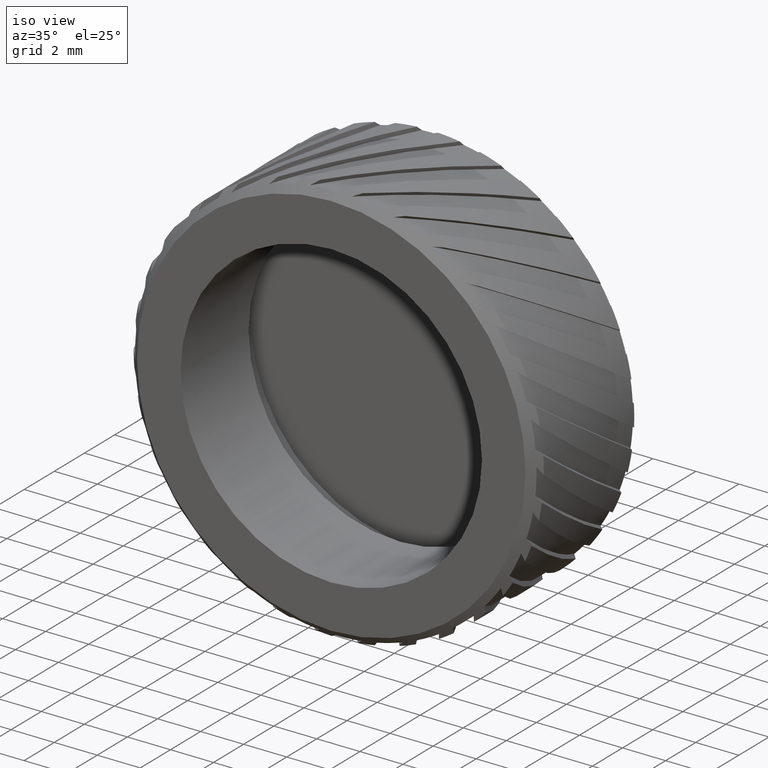
[diagram: clean part render]
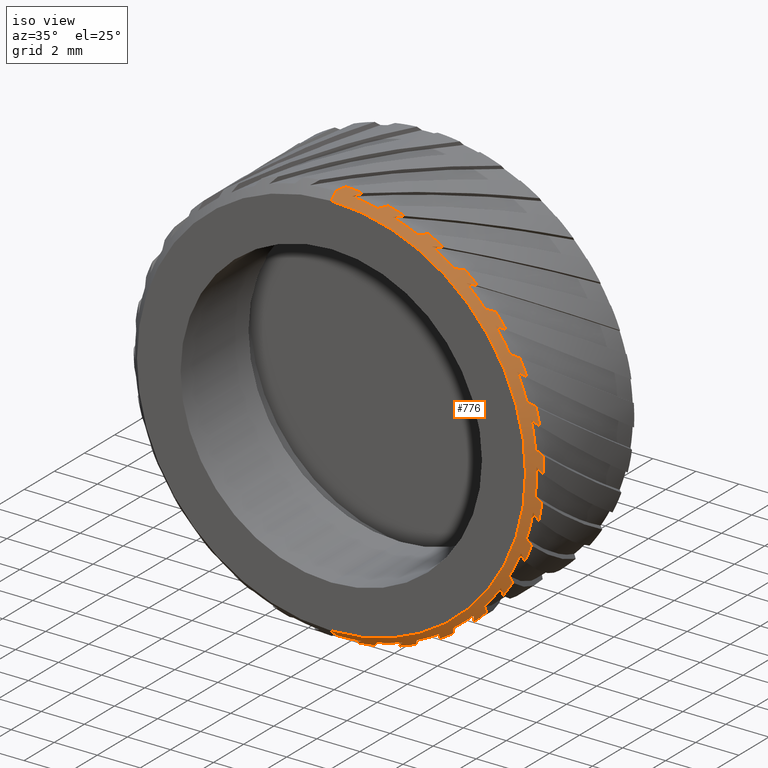
[diagram: same view with one face highlighted and labeled with its STEP entity id]
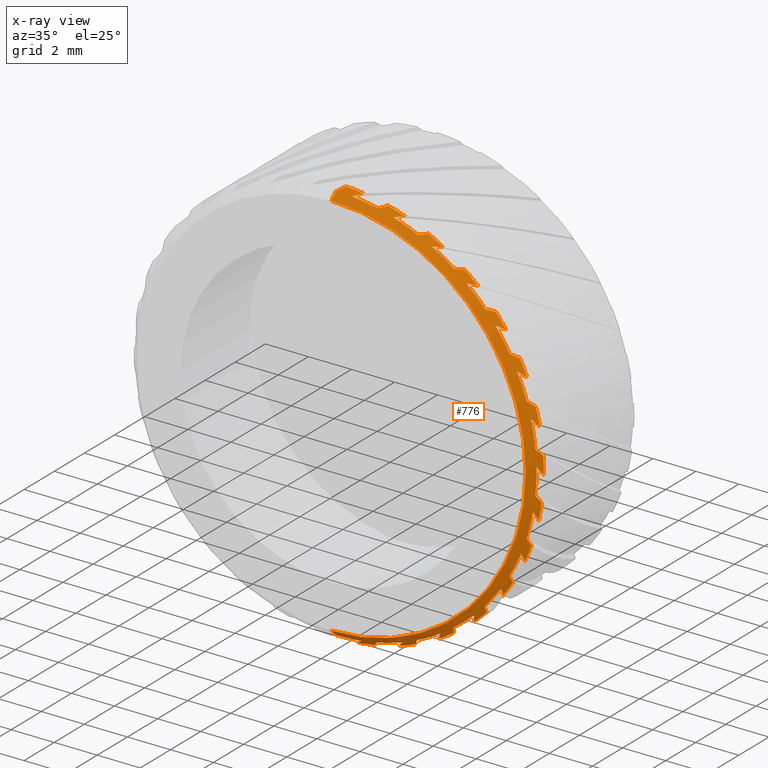
[diagram: x-ray of the same camera — body ghosted, the highlighted face saturated]
A machine part, iso view. The second image highlights one B-rep face of the part: STEP entity #776.
The next image is the same camera in x-ray: the body ghosted, the highlighted face saturated — about 0% of this face is hidden behind the body in this view.
In plain terms, the highlighted conical surface has half-angle 45 deg.
Its self-contained STEP definition (entity closure, byte-faithful):
#21 = CARTESIAN_POINT ( 'NONE',  ( 4.870338292270503200, -12.83088448223190900, 8.185684450236509600 ) ) ;
#32 = DIRECTION ( 'NONE',  ( 0.0000000000000000000, 1.000000000000000000, 0.0000000000000000000 ) ) ;
#38 = CARTESIAN_POINT ( 'NONE',  ( 3.814657378350161400, -13.03088448223190600, 8.509054829168677600 ) ) ;
#49 = CARTESIAN_POINT ( 'NONE',  ( 9.207953515562968100, -12.96534722351687200, -1.846555314416309200 ) ) ;
#56 = CARTESIAN_POINT ( 'NONE',  ( 4.164090544165423700, -12.83088448223190700, 8.566561442025165000 ) ) ;
#68 = EDGE_CURVE ( 'NONE', #3888, #1307, #2335, .T. ) ;
#84 = VERTEX_POINT ( 'NONE', #4165 ) ;
#88 = CARTESIAN_POINT ( 'NONE',  ( 0.0000000000000000000, -13.03088448223190600, -0.0000000000000000000 ) ) ;
#105 = VERTEX_POINT ( 'NONE', #2701 ) ;
#124 = ORIENTED_EDGE ( 'NONE', *, *, #1423, .F. ) ;
#130 = AXIS2_PLACEMENT_3D ( 'NONE', #561, #916, #3170 ) ;
#136 = EDGE_CURVE ( 'NONE', #4633, #138, #3247, .T. ) ;
#138 = VERTEX_POINT ( 'NONE', #3550 ) ;
#149 = CARTESIAN_POINT ( 'NONE',  ( 0.0000000000000000000, -13.03088448223190600, 0.0000000000000000000 ) ) ;
#156 = EDGE_CURVE ( 'NONE', #1307, #3313, #2257, .T. ) ;
#178 = ORIENTED_EDGE ( 'NONE', *, *, #4679, .F. ) ;
#182 = ORIENTED_EDGE ( 'NONE', *, *, #3194, .F. ) ;
#194 = ORIENTED_EDGE ( 'NONE', *, *, #662, .F. ) ;
#198 = DIRECTION ( 'NONE',  ( 0.0000000000000000000, 0.0000000000000000000, 1.000000000000000000 ) ) ;
#216 = CIRCLE ( 'NONE', #2309, 9.525000000000007500 ) ;
#219 = CARTESIAN_POINT ( 'NONE',  ( 9.500905103956760900, -12.83088448223190700, 0.6770725261067379600 ) ) ;
#224 = CARTESIAN_POINT ( 'NONE',  ( 8.424867540403829100, -13.03088448223190600, 3.997152977639219200 ) ) ;
#233 = B_SPLINE_CURVE_WITH_KNOTS ( 'NONE', 3,
 ( #3875, #3846, #503, #3833 ),
 .UNSPECIFIED., .F., .F.,
 ( 4, 4 ),
 ( 4.433820586314224500E-007, 0.0004511833739654762300 ),
 .UNSPECIFIED. ) ;
#242 = CARTESIAN_POINT ( 'NONE',  ( 9.152516238525768300, -12.83088448223190700, 2.637626111396816200 ) ) ;
#271 = VERTEX_POINT ( 'NONE', #1390 ) ;
#272 = EDGE_CURVE ( 'NONE', #2508, #2579, #2745, .T. ) ;
#278 = CARTESIAN_POINT ( 'NONE',  ( 4.855894612630616600, -13.03088448223190600, -7.960898976310720500 ) ) ;
#300 = B_SPLINE_CURVE_WITH_KNOTS ( 'NONE', 3,
 ( #4542, #3065, #868, #4498 ),
 .UNSPECIFIED., .F., .F.,
 ( 4, 4 ),
 ( 0.0004226730104152885700, 0.0008293654366192136400 ),
 .UNSPECIFIED. ) ;
#308 = EDGE_CURVE ( 'NONE', #105, #465, #546, .T. ) ;
#311 = CARTESIAN_POINT ( 'NONE',  ( 9.071818805184335600, -13.03088448223190600, 2.158177139602768700 ) ) ;
#317 = AXIS2_PLACEMENT_3D ( 'NONE', #3548, #4288, #3136 ) ;
#326 = CARTESIAN_POINT ( 'NONE',  ( 9.500905103956760900, -12.83088448223190700, 0.6770725261067379600 ) ) ;
#330 = CARTESIAN_POINT ( 'NONE',  ( 3.707592461268477600, -12.96496842722939200, -8.628600713999469800 ) ) ;
#343 = EDGE_CURVE ( 'NONE', #1672, #1508, #3118, .T. ) ;
#344 = CARTESIAN_POINT ( 'NONE',  ( 7.631753437051152400, -12.83088448223190900, -5.699295085890716100 ) ) ;
#372 = CIRCLE ( 'NONE', #2705, 9.325000000000008200 ) ;
#380 = ORIENTED_EDGE ( 'NONE', *, *, #2422, .F. ) ;
#389 = CARTESIAN_POINT ( 'NONE',  ( 0.0000000000000000000, -13.03088448223190600, -0.0000000000000000000 ) ) ;
#394 = DIRECTION ( 'NONE',  ( 0.0000000000000000000, 0.0000000000000000000, 1.000000000000000000 ) ) ;
#408 = CARTESIAN_POINT ( 'NONE',  ( 2.930637846493423300, -12.89865641947646500, 8.992436686122829300 ) ) ;
#413 = ORIENTED_EDGE ( 'NONE', *, *, #2620, .F. ) ;
#436 = CARTESIAN_POINT ( 'NONE',  ( 4.789065492326550100, -12.96534722351687200, -8.078429685537567900 ) ) ;
#463 = ORIENTED_EDGE ( 'NONE', *, *, #343, .F. ) ;
#465 = VERTEX_POINT ( 'NONE', #1919 ) ;
#470 = VERTEX_POINT ( 'NONE', #3786 ) ;
#491 = CARTESIAN_POINT ( 'NONE',  ( 9.152516238525768300, -12.83088448223190700, 2.637626111396816200 ) ) ;
#501 = ORIENTED_EDGE ( 'NONE', *, *, #4712, .F. ) ;
#503 = CARTESIAN_POINT ( 'NONE',  ( 0.8739464603738493800, -12.96534722351687200, 9.350528972115299100 ) ) ;
#504 = EDGE_CURVE ( 'NONE', #4040, #4674, #3430, .T. ) ;
#507 = CARTESIAN_POINT ( 'NONE',  ( 8.968881278861911000, -12.96496842722939200, 2.785347509049333600 ) ) ;
#512 = EDGE_CURVE ( 'NONE', #2574, #1230, #1366, .T. ) ;
#518 = AXIS2_PLACEMENT_3D ( 'NONE', #1994, #2008, #3491 ) ;
#526 = ORIENTED_EDGE ( 'NONE', *, *, #1048, .F. ) ;
#546 = B_SPLINE_CURVE_WITH_KNOTS ( 'NONE', 3,
 ( #4409, #2553, #2162, #3307 ),
 .UNSPECIFIED., .F., .F.,
 ( 4, 4 ),
 ( 0.0004226730104152889500, 0.0008293654366192129900 ),
 .UNSPECIFIED. ) ;
#553 = CARTESIAN_POINT ( 'NONE',  ( 1.119857609519556500, -12.83088448223190900, 9.458939894850866300 ) ) ;
#561 = CARTESIAN_POINT ( 'NONE',  ( 0.0000000000000000000, -12.83088448223190900, 0.0000000000000000000 ) ) ;
#564 = CARTESIAN_POINT ( 'NONE',  ( 9.342041456863764600, -12.83088448223190900, 1.857925299423781200 ) ) ;
#569 = CARTESIAN_POINT ( 'NONE',  ( 9.165328586957839400, -13.03088448223190600, -1.718248204740388600 ) ) ;
#571 = CARTESIAN_POINT ( 'NONE',  ( 8.893163563459369300, -12.96496842722939200, -3.018382675216257500 ) ) ;
#585 = DIRECTION ( 'NONE',  ( 0.0000000000000000000, 0.0000000000000000000, 1.000000000000000000 ) ) ;
#591 = CARTESIAN_POINT ( 'NONE',  ( 7.174770679677640900, -12.89828644355677900, 6.162639272177138100 ) ) ;
#594 = CARTESIAN_POINT ( 'NONE',  ( 9.162945818166235800, -12.96534722351687200, 2.058299882747275200 ) ) ;
#595 = EDGE_CURVE ( 'NONE', #3397, #4312, #837, .T. ) ;
#599 = CIRCLE ( 'NONE', #3883, 9.325000000000006400 ) ;
#641 = DIRECTION ( 'NONE',  ( 0.0000000000000000000, 1.000000000000000000, 0.0000000000000000000 ) ) ;
#642 = ORIENTED_EDGE ( 'NONE', *, *, #1179, .F. ) ;
#656 = DIRECTION ( 'NONE',  ( 0.8660254037844398200, 0.0000000000000000000, 0.4999999999999980000 ) ) ;
#659 = CONICAL_SURFACE ( 'NONE', #835, 9.525000000000007500, 0.7853981633974517200 ) ;
#662 = EDGE_CURVE ( 'NONE', #4408, #3216, #372, .T. ) ;
#668 = AXIS2_PLACEMENT_3D ( 'NONE', #764, #32, #4778 ) ;
#677 = VECTOR ( 'NONE', #1893, 1000.000000000000100 ) ;
#683 = CARTESIAN_POINT ( 'NONE',  ( 8.404118494825590700, -12.83088448223190700, 4.482902778884528600 ) ) ;
#686 = DIRECTION ( 'NONE',  ( -0.0000000000000000000, 1.000000000000000000, -0.0000000000000000000 ) ) ;
#696 = ORIENTED_EDGE ( 'NONE', *, *, #4482, .F. ) ;
#706 = DIRECTION ( 'NONE',  ( 0.0000000000000000000, 0.0000000000000000000, 1.000000000000000000 ) ) ;
#714 = DIRECTION ( 'NONE',  ( 0.0000000000000000000, 0.0000000000000000000, -1.000000000000000000 ) ) ;
#730 = CARTESIAN_POINT ( 'NONE',  ( 0.0000000000000000000, -12.83088448223190900, 0.0000000000000000000 ) ) ;
#736 = CARTESIAN_POINT ( 'NONE',  ( 0.0000000000000000000, -12.83088448223190900, 0.0000000000000000000 ) ) ;
#756 = CARTESIAN_POINT ( 'NONE',  ( 4.047907953994396700, -12.89828644355677900, 8.548093255278093500 ) ) ;
#759 = ORIENTED_EDGE ( 'NONE', *, *, #1554, .F. ) ;
#764 = CARTESIAN_POINT ( 'NONE',  ( -0.0000000000000000000, -13.03088448223190600, 0.0000000000000000000 ) ) ;
#771 = CIRCLE ( 'NONE', #3416, 9.325000000000008200 ) ;
#772 = CARTESIAN_POINT ( 'NONE',  ( 7.660822398487292500, -12.96534722351687200, -5.432124322288925300 ) ) ;
#775 = ORIENTED_EDGE ( 'NONE', *, *, #3358, .F. ) ;
#776 = ADVANCED_FACE ( 'NONE', ( #3605 ), #659, .T. ) ;
#834 = DIRECTION ( 'NONE',  ( 0.0000000000000000000, 0.0000000000000000000, 1.000000000000000000 ) ) ;
#835 = AXIS2_PLACEMENT_3D ( 'NONE', #730, #3294, #4386 ) ;
#837 = CIRCLE ( 'NONE', #3955, 9.525000000000007500 ) ;
#859 = CIRCLE ( 'NONE', #1552, 9.325000000000006400 ) ;
#863 = ORIENTED_EDGE ( 'NONE', *, *, #2486, .F. ) ;
#868 = CARTESIAN_POINT ( 'NONE',  ( 5.736699975163662500, -12.89828644355677900, 7.519689521509459200 ) ) ;
#880 = CARTESIAN_POINT ( 'NONE',  ( 7.533581546059083100, -12.96534722351687200, 5.607256331116454700 ) ) ;
#910 = ORIENTED_EDGE ( 'NONE', *, *, #3908, .F. ) ;
#912 = CARTESIAN_POINT ( 'NONE',  ( 0.0000000000000000000, -12.83088448223190900, 0.0000000000000000000 ) ) ;
#916 = DIRECTION ( 'NONE',  ( -0.0000000000000000000, 1.000000000000000000, -0.0000000000000000000 ) ) ;
#940 = CARTESIAN_POINT ( 'NONE',  ( 1.166476076187854800E-015, -12.83088448223190900, -9.525000000000007500 ) ) ;
#942 = EDGE_CURVE ( 'NONE', #2651, #2539, #2400, .T. ) ;
#947 = CARTESIAN_POINT ( 'NONE',  ( 0.0000000000000000000, -13.03088448223190600, -0.0000000000000000000 ) ) ;
#996 = CARTESIAN_POINT ( 'NONE',  ( 8.063701062845819200, -13.03088448223190600, -4.683198711250607700 ) ) ;
#1001 = B_SPLINE_CURVE_WITH_KNOTS ( 'NONE', 3,
 ( #1859, #1460, #49, #3282 ),
 .UNSPECIFIED., .F., .F.,
 ( 4, 4 ),
 ( 4.433820586325697000E-007, 0.0004511833739654763900 ),
 .UNSPECIFIED. ) ;
#1004 = EDGE_CURVE ( 'NONE', #1771, #2355, #233, .T. ) ;
#1010 = DIRECTION ( 'NONE',  ( -0.0000000000000000000, 1.000000000000000000, -0.0000000000000000000 ) ) ;
#1014 = CARTESIAN_POINT ( 'NONE',  ( 9.434058825943974800, -12.83088448223190700, -1.313072377528650100 ) ) ;
#1034 = AXIS2_PLACEMENT_3D ( 'NONE', #88, #1929, #1944 ) ;
#1035 = B_SPLINE_CURVE_WITH_KNOTS ( 'NONE', 3,
 ( #3431, #4180, #880, #3392 ),
 .UNSPECIFIED., .F., .F.,
 ( 4, 4 ),
 ( 4.433820586316888400E-007, 0.0004511833739654772600 ),
 .UNSPECIFIED. ) ;
#1039 = DIRECTION ( 'NONE',  ( 0.0000000000000000000, 1.000000000000000000, 0.0000000000000000000 ) ) ;
#1044 = ORIENTED_EDGE ( 'NONE', *, *, #2600, .F. ) ;
#1048 = EDGE_CURVE ( 'NONE', #1068, #4145, #4693, .T. ) ;
#1050 = CARTESIAN_POINT ( 'NONE',  ( 3.814657378350161400, -13.03088448223190600, 8.509054829168677600 ) ) ;
#1052 = VERTEX_POINT ( 'NONE', #242 ) ;
#1058 = EDGE_CURVE ( 'NONE', #4268, #4088, #3667, .T. ) ;
#1059 = B_SPLINE_CURVE_WITH_KNOTS ( 'NONE', 3,
 ( #3733, #4074, #436, #2214 ),
 .UNSPECIFIED., .F., .F.,
 ( 4, 4 ),
 ( 4.433820586312838500E-007, 0.0004511833739654766600 ),
 .UNSPECIFIED. ) ;
#1061 = CARTESIAN_POINT ( 'NONE',  ( 9.276386333429815800, -13.03088448223190600, 0.9509372181993307500 ) ) ;
#1068 = VERTEX_POINT ( 'NONE', #3887 ) ;
#1072 = CIRCLE ( 'NONE', #4563, 9.525000000000007500 ) ;
#1077 = ORIENTED_EDGE ( 'NONE', *, *, #68, .F. ) ;
#1098 = VERTEX_POINT ( 'NONE', #1355 ) ;
#1126 = CARTESIAN_POINT ( 'NONE',  ( 0.0000000000000000000, -12.83088448223190900, 0.0000000000000000000 ) ) ;
#1131 = DIRECTION ( 'NONE',  ( 0.0000000000000000000, 0.0000000000000000000, 1.000000000000000000 ) ) ;
#1138 = B_SPLINE_CURVE_WITH_KNOTS ( 'NONE', 3,
 ( #2134, #330, #4697, #4716 ),
 .UNSPECIFIED., .F., .F.,
 ( 4, 4 ),
 ( 0.0004226730104152883500, 0.0008293654366192131000 ),
 .UNSPECIFIED. ) ;
#1141 = DIRECTION ( 'NONE',  ( -0.0000000000000000000, 1.000000000000000000, -0.0000000000000000000 ) ) ;
#1179 = EDGE_CURVE ( 'NONE', #271, #2950, #1738, .T. ) ;
#1181 = CARTESIAN_POINT ( 'NONE',  ( 7.674069791650079100, -13.03088448223190600, -5.297572824689041200 ) ) ;
#1204 = CIRCLE ( 'NONE', #1034, 9.325000000000008200 ) ;
#1205 = B_SPLINE_CURVE_WITH_KNOTS ( 'NONE', 3,
 ( #3412, #3795, #2296, #4170 ),
 .UNSPECIFIED., .F., .F.,
 ( 4, 4 ),
 ( 4.433820586328774900E-007, 0.0004511833739654774700 ),
 .UNSPECIFIED. ) ;
#1207 = EDGE_CURVE ( 'NONE', #3761, #4599, #2035, .T. ) ;
#1228 = CIRCLE ( 'NONE', #4037, 9.525000000000007500 ) ;
#1230 = VERTEX_POINT ( 'NONE', #1457 ) ;
#1244 = VERTEX_POINT ( 'NONE', #2993 ) ;
#1248 = CARTESIAN_POINT ( 'NONE',  ( 7.060577856809785200, -12.96496842722939200, 6.192514228357842000 ) ) ;
#1258 = ORIENTED_EDGE ( 'NONE', *, *, #3562, .F. ) ;
#1279 = CARTESIAN_POINT ( 'NONE',  ( 0.0000000000000000000, -12.83088448223190900, 0.0000000000000000000 ) ) ;
#1283 = ORIENTED_EDGE ( 'NONE', *, *, #512, .F. ) ;
#1289 = CARTESIAN_POINT ( 'NONE',  ( 6.334824403444840400, -12.89865641947646700, 7.023001887992561100 ) ) ;
#1292 = DIRECTION ( 'NONE',  ( -0.2079116908177664500, 0.0000000000000000000, -0.9781476007338041300 ) ) ;
#1294 = CARTESIAN_POINT ( 'NONE',  ( 9.071818805184335600, -13.03088448223190600, 2.158177139602768700 ) ) ;
#1304 = EDGE_CURVE ( 'NONE', #1230, #3163, #2897, .T. ) ;
#1307 = VERTEX_POINT ( 'NONE', #4149 ) ;
#1310 = CARTESIAN_POINT ( 'NONE',  ( 8.607800277777613500, -13.03088448223190600, -3.586279322346735700 ) ) ;
#1333 = CIRCLE ( 'NONE', #2038, 9.525000000000007500 ) ;
#1336 = CARTESIAN_POINT ( 'NONE',  ( 2.666873173829314800, -13.03088448223190600, 8.935514113620417500 ) ) ;
#1338 = AXIS2_PLACEMENT_3D ( 'NONE', #3981, #2830, #4291 ) ;
#1349 = CARTESIAN_POINT ( 'NONE',  ( 7.631753437051152400, -12.83088448223190900, -5.699295085890716100 ) ) ;
#1355 = CARTESIAN_POINT ( 'NONE',  ( 6.280031236066718300, -12.83088448223190900, -7.161482575139485700 ) ) ;
#1358 = EDGE_CURVE ( 'NONE', #3538, #1098, #2721, .T. ) ;
#1366 = B_SPLINE_CURVE_WITH_KNOTS ( 'NONE', 3,
 ( #3181, #1289, #3561, #2379 ),
 .UNSPECIFIED., .F., .F.,
 ( 4, 4 ),
 ( 4.433820586323410600E-007, 0.0004511833739654791000 ),
 .UNSPECIFIED. ) ;
#1369 = CIRCLE ( 'NONE', #4469, 9.325000000000006400 ) ;
#1385 = CARTESIAN_POINT ( 'NONE',  ( 7.409709137107907600, -13.03088448223190600, 5.661434050084810800 ) ) ;
#1390 = CARTESIAN_POINT ( 'NONE',  ( 8.084366936622640100, -12.83088448223190700, -5.036728723491354000 ) ) ;
#1391 = CARTESIAN_POINT ( 'NONE',  ( 0.0000000000000000000, -13.03088448223190600, -0.0000000000000000000 ) ) ;
#1400 = ORIENTED_EDGE ( 'NONE', *, *, #4134, .F. ) ;
#1413 = CARTESIAN_POINT ( 'NONE',  ( 5.336814559791353200, -12.83088448223190700, -7.889488915918393600 ) ) ;
#1421 = CARTESIAN_POINT ( 'NONE',  ( 5.461728955079668600, -13.03088448223190600, -7.558117610969312700 ) ) ;
#1423 = EDGE_CURVE ( 'NONE', #84, #1771, #4173, .T. ) ;
#1430 = DIRECTION ( 'NONE',  ( 0.4067366430757947100, 0.0000000000000000000, -0.9135454576426032000 ) ) ;
#1432 = B_SPLINE_CURVE_WITH_KNOTS ( 'NONE', 3,
 ( #2714, #4188, #3082, #4602 ),
 .UNSPECIFIED., .F., .F.,
 ( 4, 4 ),
 ( 4.433820586321245300E-007, 0.0004511833739654774200 ),
 .UNSPECIFIED. ) ;
#1434 = CARTESIAN_POINT ( 'NONE',  ( 9.351996014306605400, -12.96496842722939200, 0.8597457117545545000 ) ) ;
#1436 = CARTESIAN_POINT ( 'NONE',  ( 0.02391852349061755100, -13.03088448223190600, 9.324969324573359600 ) ) ;
#1442 = VERTEX_POINT ( 'NONE', #4540 ) ;
#1445 = B_SPLINE_CURVE_WITH_KNOTS ( 'NONE', 3,
 ( #4421, #4483, #4502, #3735 ),
 .UNSPECIFIED., .F., .F.,
 ( 4, 4 ),
 ( 0.0004226730104152886200, 0.0008293654366192134300 ),
 .UNSPECIFIED. ) ;
#1448 = VERTEX_POINT ( 'NONE', #1654 ) ;
#1457 = CARTESIAN_POINT ( 'NONE',  ( 6.070710888791085200, -13.03088448223190600, 7.078283287967038500 ) ) ;
#1460 = CARTESIAN_POINT ( 'NONE',  ( 9.249510247550048800, -12.89865641947646700, -1.974617917900571200 ) ) ;
#1491 = CARTESIAN_POINT ( 'NONE',  ( 5.336814559791353200, -12.83088448223190700, -7.889488915918393600 ) ) ;
#1497 = EDGE_CURVE ( 'NONE', #3163, #3508, #2773, .T. ) ;
#1508 = VERTEX_POINT ( 'NONE', #219 ) ;
#1510 = CARTESIAN_POINT ( 'NONE',  ( 3.062010220797057000, -12.83088448223190900, 9.019407874563304600 ) ) ;
#1513 = EDGE_CURVE ( 'NONE', #3216, #271, #2473, .T. ) ;
#1538 = EDGE_CURVE ( 'NONE', #3335, #1673, #1369, .T. ) ;
#1552 = AXIS2_PLACEMENT_3D ( 'NONE', #4131, #3003, #3363 ) ;
#1554 = EDGE_CURVE ( 'NONE', #2393, #4408, #2838, .T. ) ;
#1560 = VERTEX_POINT ( 'NONE', #1684 ) ;
#1562 = CARTESIAN_POINT ( 'NONE',  ( 9.290065837399984300, -12.83088448223190900, -2.102451363711865400 ) ) ;
#1563 = CARTESIAN_POINT ( 'NONE',  ( 1.962165985461234300, -13.03088448223190600, 9.116223431086968500 ) ) ;
#1581 = CARTESIAN_POINT ( 'NONE',  ( 2.182202931218148600, -12.89828644355677900, 9.202904295488727000 ) ) ;
#1593 = DIRECTION ( 'NONE',  ( -0.0000000000000000000, 1.000000000000000000, -0.0000000000000000000 ) ) ;
#1607 = CARTESIAN_POINT ( 'NONE',  ( 6.945807317418622300, -13.03088448223190600, 6.221847451464401300 ) ) ;
#1608 = VERTEX_POINT ( 'NONE', #311 ) ;
#1613 = CARTESIAN_POINT ( 'NONE',  ( 4.870338292270503200, -12.83088448223190900, 8.185684450236509600 ) ) ;
#1617 = ORIENTED_EDGE ( 'NONE', *, *, #136, .F. ) ;
#1619 = CARTESIAN_POINT ( 'NONE',  ( 0.02391852349061755100, -13.03088448223190600, 9.324969324573359600 ) ) ;
#1620 = EDGE_CURVE ( 'NONE', #4674, #1943, #3248, .T. ) ;
#1638 = CARTESIAN_POINT ( 'NONE',  ( 8.954898907600604500, -12.83088448223190700, -3.245829717445702500 ) ) ;
#1640 = CARTESIAN_POINT ( 'NONE',  ( 6.404945631355031000, -13.03088448223190600, -6.777336974017614100 ) ) ;
#1654 = CARTESIAN_POINT ( 'NONE',  ( 5.854183448919412700, -12.83088448223190700, 7.513598415299967700 ) ) ;
#1671 = CARTESIAN_POINT ( 'NONE',  ( 7.288420445466736700, -12.83088448223190700, 6.132255083580807800 ) ) ;
#1672 = VERTEX_POINT ( 'NONE', #2554 ) ;
#1673 = VERTEX_POINT ( 'NONE', #2264 ) ;
#1684 = CARTESIAN_POINT ( 'NONE',  ( 6.404945631355031000, -13.03088448223190600, -6.777336974017614100 ) ) ;
#1686 = DIRECTION ( 'NONE',  ( 0.0000000000000000000, 1.000000000000000000, 0.0000000000000000000 ) ) ;
#1704 = EDGE_CURVE ( 'NONE', #1608, #1672, #1204, .T. ) ;
#1707 = ORIENTED_EDGE ( 'NONE', *, *, #1304, .F. ) ;
#1715 = CARTESIAN_POINT ( 'NONE',  ( 6.465809209895690300, -12.83088448223190900, 6.994207336162423500 ) ) ;
#1731 = CARTESIAN_POINT ( 'NONE',  ( 0.0000000000000000000, -12.83088448223190900, 0.0000000000000000000 ) ) ;
#1737 = ORIENTED_EDGE ( 'NONE', *, *, #3273, .F. ) ;
#1738 = CIRCLE ( 'NONE', #3415, 9.525000000000007500 ) ;
#1740 = DIRECTION ( 'NONE',  ( 0.0000000000000000000, 0.0000000000000000000, 1.000000000000000000 ) ) ;
#1741 = VERTEX_POINT ( 'NONE', #4543 ) ;
#1750 = CARTESIAN_POINT ( 'NONE',  ( 0.0000000000000000000, -13.33088448223191600, 0.0000000000000000000 ) ) ;
#1758 = ORIENTED_EDGE ( 'NONE', *, *, #3053, .F. ) ;
#1771 = VERTEX_POINT ( 'NONE', #553 ) ;
#1794 = CARTESIAN_POINT ( 'NONE',  ( 5.420559634327515800, -12.96496842722939200, -7.669193268603035700 ) ) ;
#1809 = CARTESIAN_POINT ( 'NONE',  ( 8.087619586336469300, -13.03088448223190600, 4.641770613322771400 ) ) ;
#1813 = DIRECTION ( 'NONE',  ( 0.0000000000000000000, 0.0000000000000000000, 1.000000000000000000 ) ) ;
#1823 = CIRCLE ( 'NONE', #4032, 9.024999999999996800 ) ;
#1831 = CARTESIAN_POINT ( 'NONE',  ( 2.914685844105174600, -12.89865641947646700, -8.997619805893126700 ) ) ;
#1859 = CARTESIAN_POINT ( 'NONE',  ( 9.290065837399984300, -12.83088448223190900, -2.102451363711865400 ) ) ;
#1862 = AXIS2_PLACEMENT_3D ( 'NONE', #947, #1686, #3505 ) ;
#1866 = DIRECTION ( 'NONE',  ( -0.0000000000000000000, 1.000000000000000000, -0.0000000000000000000 ) ) ;
#1876 = EDGE_CURVE ( 'NONE', #2539, #3420, #4314, .T. ) ;
#1879 = CARTESIAN_POINT ( 'NONE',  ( 6.322359688858828300, -12.89865641947646700, -7.034225167416825500 ) ) ;
#1882 = EDGE_CURVE ( 'NONE', #4268, #3024, #1823, .T. ) ;
#1893 = DIRECTION ( 'NONE',  ( 0.0000000000000000000, 0.7071067811865451300, 0.7071067811865500200 ) ) ;
#1919 = CARTESIAN_POINT ( 'NONE',  ( 1.666478462133835300, -12.83088448223190700, -9.378084801026497900 ) ) ;
#1922 = EDGE_CURVE ( 'NONE', #3919, #1244, #859, .T. ) ;
#1927 = CARTESIAN_POINT ( 'NONE',  ( 8.954898907600604500, -12.83088448223190700, -3.245829717445702500 ) ) ;
#1929 = DIRECTION ( 'NONE',  ( 0.0000000000000000000, 1.000000000000000000, 0.0000000000000000000 ) ) ;
#1937 = AXIS2_PLACEMENT_3D ( 'NONE', #3210, #2468, #3952 ) ;
#1943 = VERTEX_POINT ( 'NONE', #4522 ) ;
#1944 = DIRECTION ( 'NONE',  ( 0.8660254037844363800, 0.0000000000000000000, -0.5000000000000040000 ) ) ;
#1945 = CARTESIAN_POINT ( 'NONE',  ( 4.653841535132784200, -12.83088448223190900, -8.310678911248652800 ) ) ;
#1953 = CARTESIAN_POINT ( 'NONE',  ( 8.875964070626878300, -13.03088448223190600, 2.858826125692306900 ) ) ;
#1968 = VECTOR ( 'NONE', #3903, 1000.000000000000100 ) ;
#1984 = VERTEX_POINT ( 'NONE', #1562 ) ;
#1994 = CARTESIAN_POINT ( 'NONE',  ( 0.0000000000000000000, -12.83088448223190900, 0.0000000000000000000 ) ) ;
#1996 = CARTESIAN_POINT ( 'NONE',  ( 1.135859906209170400E-015, -13.33088448223191600, -9.024999999999996800 ) ) ;
#1999 = CARTESIAN_POINT ( 'NONE',  ( 0.2211251689762230300, -12.89828644355677800, 9.455504257552167500 ) ) ;
#2008 = DIRECTION ( 'NONE',  ( -0.0000000000000000000, 1.000000000000000000, -0.0000000000000000000 ) ) ;
#2010 = DIRECTION ( 'NONE',  ( -0.0000000000000000000, 1.000000000000000000, -0.0000000000000000000 ) ) ;
#2018 = ORIENTED_EDGE ( 'NONE', *, *, #1620, .F. ) ;
#2023 = CIRCLE ( 'NONE', #4435, 9.325000000000008200 ) ;
#2025 = CARTESIAN_POINT ( 'NONE',  ( 6.860509337417676400, -12.83088448223190700, -6.607498515414516000 ) ) ;
#2035 = B_SPLINE_CURVE_WITH_KNOTS ( 'NONE', 3,
 ( #1050, #3983, #756, #3680 ),
 .UNSPECIFIED., .F., .F.,
 ( 4, 4 ),
 ( 0.0004226730104152884600, 0.0008293654366192127700 ),
 .UNSPECIFIED. ) ;
#2036 = EDGE_CURVE ( 'NONE', #4106, #2053, #1432, .T. ) ;
#2038 = AXIS2_PLACEMENT_3D ( 'NONE', #1126, #1141, #3018 ) ;
#2053 = VERTEX_POINT ( 'NONE', #4205 ) ;
#2057 = EDGE_CURVE ( 'NONE', #4656, #84, #4756, .T. ) ;
#2058 = CARTESIAN_POINT ( 'NONE',  ( 0.0000000000000000000, -12.83088448223190900, 0.0000000000000000000 ) ) ;
#2065 = CARTESIAN_POINT ( 'NONE',  ( 8.649931391620446800, -12.83088448223190900, -3.988021053136419500 ) ) ;
#2071 = ORIENTED_EDGE ( 'NONE', *, *, #2325, .F. ) ;
#2078 = ORIENTED_EDGE ( 'NONE', *, *, #2369, .F. ) ;
#2099 = CARTESIAN_POINT ( 'NONE',  ( 9.271386000421596700, -13.03088448223190600, -0.9985122088319959800 ) ) ;
#2122 = CARTESIAN_POINT ( 'NONE',  ( 5.500429939048202300, -13.03088448223190600, 7.529999700240519900 ) ) ;
#2133 = CIRCLE ( 'NONE', #2182, 9.525000000000007500 ) ;
#2134 = CARTESIAN_POINT ( 'NONE',  ( 3.770956061373358400, -13.03088448223190600, -8.528511909072511400 ) ) ;
#2149 = CARTESIAN_POINT ( 'NONE',  ( 7.778693238653521500, -12.83088448223190900, 5.497049799567596700 ) ) ;
#2152 = DIRECTION ( 'NONE',  ( 0.0000000000000000000, 0.0000000000000000000, 1.000000000000000000 ) ) ;
#2162 = CARTESIAN_POINT ( 'NONE',  ( 1.749616824226184300, -12.89828644355677800, -9.294853311017156700 ) ) ;
#2182 = AXIS2_PLACEMENT_3D ( 'NONE', #3497, #3132, #198 ) ;
#2188 = ORIENTED_EDGE ( 'NONE', *, *, #2057, .F. ) ;
#2208 = CARTESIAN_POINT ( 'NONE',  ( 3.062010220797057000, -12.83088448223190900, 9.019407874563304600 ) ) ;
#2214 = CARTESIAN_POINT ( 'NONE',  ( 4.855894612630616600, -13.03088448223190600, -7.960898976310720500 ) ) ;
#2257 = CIRCLE ( 'NONE', #130, 9.525000000000007500 ) ;
#2259 = CARTESIAN_POINT ( 'NONE',  ( 0.0000000000000000000, -12.83088448223190900, 9.525000000000007500 ) ) ;
#2261 = VERTEX_POINT ( 'NONE', #3357 ) ;
#2264 = CARTESIAN_POINT ( 'NONE',  ( 6.913798085165607800, -13.03088448223190600, -6.257397305394670500 ) ) ;
#2271 = CARTESIAN_POINT ( 'NONE',  ( 1.962165985461234300, -13.03088448223190600, 9.116223431086968500 ) ) ;
#2275 = CARTESIAN_POINT ( 'NONE',  ( 6.280031236066718300, -12.83088448223190900, -7.161482575139485700 ) ) ;
#2296 = CARTESIAN_POINT ( 'NONE',  ( 9.390658076525140200, -12.96534722351687400, 0.1082375339734589800 ) ) ;
#2298 = EDGE_CURVE ( 'NONE', #4312, #4633, #1059, .T. ) ;
#2309 = AXIS2_PLACEMENT_3D ( 'NONE', #1279, #3872, #2750 ) ;
#2313 = CARTESIAN_POINT ( 'NONE',  ( 4.601592584198555400, -12.96534722351687200, 8.186667219511027900 ) ) ;
#2314 = ORIENTED_EDGE ( 'NONE', *, *, #942, .F. ) ;
#2322 = VERTEX_POINT ( 'NONE', #1927 ) ;
#2325 = EDGE_CURVE ( 'NONE', #4475, #4040, #1035, .T. ) ;
#2335 = B_SPLINE_CURVE_WITH_KNOTS ( 'NONE', 3,
 ( #1563, #4148, #1581, #2671 ),
 .UNSPECIFIED., .F., .F.,
 ( 4, 4 ),
 ( 0.0004226730104152883500, 0.0008293654366192122300 ),
 .UNSPECIFIED. ) ;
#2348 = CARTESIAN_POINT ( 'NONE',  ( 0.1225138370717710100, -12.96496842722939200, 9.390632699675403900 ) ) ;
#2355 = VERTEX_POINT ( 'NONE', #4136 ) ;
#2357 = CARTESIAN_POINT ( 'NONE',  ( 4.736229094150678200, -12.89865641947646700, 8.186616499442733300 ) ) ;
#2369 = EDGE_CURVE ( 'NONE', #3420, #1448, #300, .T. ) ;
#2370 = CARTESIAN_POINT ( 'NONE',  ( -0.0000000000000000000, -13.03088448223190600, 0.0000000000000000000 ) ) ;
#2379 = CARTESIAN_POINT ( 'NONE',  ( 6.070710888791085200, -13.03088448223190600, 7.078283287967038500 ) ) ;
#2387 = B_SPLINE_CURVE_WITH_KNOTS ( 'NONE', 3,
 ( #1953, #507, #4536, #491 ),
 .UNSPECIFIED., .F., .F.,
 ( 4, 4 ),
 ( 0.0004226730104152886200, 0.0008293654366192125600 ),
 .UNSPECIFIED. ) ;
#2393 = VERTEX_POINT ( 'NONE', #4512 ) ;
#2397 = DIRECTION ( 'NONE',  ( -0.0000000000000000000, 1.000000000000000000, -0.0000000000000000000 ) ) ;
#2400 = B_SPLINE_CURVE_WITH_KNOTS ( 'NONE', 3,
 ( #1613, #2357, #2313, #3445 ),
 .UNSPECIFIED., .F., .F.,
 ( 4, 4 ),
 ( 4.433820586319022400E-007, 0.0004511833739654768200 ),
 .UNSPECIFIED. ) ;
#2410 = CARTESIAN_POINT ( 'NONE',  ( 8.643662270967636700, -12.89865641947646700, 3.839226261459192100 ) ) ;
#2413 = AXIS2_PLACEMENT_3D ( 'NONE', #2370, #2747, #1292 ) ;
#2422 = EDGE_CURVE ( 'NONE', #2538, #1442, #2619, .T. ) ;
#2426 = CIRCLE ( 'NONE', #668, 9.325000000000008200 ) ;
#2432 = CARTESIAN_POINT ( 'NONE',  ( 0.0000000000000000000, -13.03088448223190600, -0.0000000000000000000 ) ) ;
#2437 = CARTESIAN_POINT ( 'NONE',  ( 8.636840106574075200, -12.89865641947646700, -3.854549093564755900 ) ) ;
#2442 = CARTESIAN_POINT ( 'NONE',  ( 3.579875377024524900, -12.83088448223190700, -8.826670792828611700 ) ) ;
#2465 = EDGE_LOOP ( 'NONE', ( #4265, #3436, #3974, #3864, #1044, #4782, #2868, #1737, #380, #1258, #1617, #4564, #3040, #3446, #1400, #775, #4331, #4420, #2472, #696, #642, #4337, #194, #759, #2595, #3870, #2741, #1758, #182, #3239, #3485, #3332, #4335, #463, #2761, #2812, #4442, #4441, #501, #526, #863, #2018, #4313, #2071, #178, #4520, #1707, #1283, #413, #2078, #4329, #2314, #910, #3880, #3353, #4183, #3825, #1077, #2510, #3796, #124, #2188, #2754, #3328 ) ) ;
#2468 = DIRECTION ( 'NONE',  ( 0.0000000000000000000, 1.000000000000000000, 0.0000000000000000000 ) ) ;
#2472 = ORIENTED_EDGE ( 'NONE', *, *, #1538, .F. ) ;
#2473 = B_SPLINE_CURVE_WITH_KNOTS ( 'NONE', 3,
 ( #2786, #3929, #4695, #3586 ),
 .UNSPECIFIED., .F., .F.,
 ( 4, 4 ),
 ( 0.0004226730104152881900, 0.0008293654366192125600 ),
 .UNSPECIFIED. ) ;
#2475 = CARTESIAN_POINT ( 'NONE',  ( 9.380592141780669000, -12.89828644355677900, -1.208283151626581700 ) ) ;
#2486 = EDGE_CURVE ( 'NONE', #1943, #1068, #216, .T. ) ;
#2494 = EDGE_CURVE ( 'NONE', #2261, #1608, #2952, .T. ) ;
#2495 = DIRECTION ( 'NONE',  ( 0.7431448254773954700, 0.0000000000000000000, 0.6691306063588567900 ) ) ;
#2508 = VERTEX_POINT ( 'NONE', #2776 ) ;
#2510 = ORIENTED_EDGE ( 'NONE', *, *, #3596, .F. ) ;
#2511 = CARTESIAN_POINT ( 'NONE',  ( 0.0000000000000000000, -13.03088448223190600, 0.0000000000000000000 ) ) ;
#2538 = VERTEX_POINT ( 'NONE', #2442 ) ;
#2539 = VERTEX_POINT ( 'NONE', #3949 ) ;
#2541 = CARTESIAN_POINT ( 'NONE',  ( 0.0000000000000000000, -12.83088448223190900, 0.0000000000000000000 ) ) ;
#2549 = EDGE_CURVE ( 'NONE', #2053, #4088, #4024, .T. ) ;
#2553 = CARTESIAN_POINT ( 'NONE',  ( 1.832585706649547900, -12.96496842722939200, -9.210896903574090200 ) ) ;
#2554 = CARTESIAN_POINT ( 'NONE',  ( 9.276386333429815800, -13.03088448223190600, 0.9509372181993307500 ) ) ;
#2572 = DIRECTION ( 'NONE',  ( -0.0000000000000000000, 1.000000000000000000, -0.0000000000000000000 ) ) ;
#2574 = VERTEX_POINT ( 'NONE', #1715 ) ;
#2579 = VERTEX_POINT ( 'NONE', #1014 ) ;
#2582 = CARTESIAN_POINT ( 'NONE',  ( 0.0000000000000000000, -13.33088448223191600, 9.024999999999996800 ) ) ;
#2595 = ORIENTED_EDGE ( 'NONE', *, *, #3259, .F. ) ;
#2600 = EDGE_CURVE ( 'NONE', #465, #4106, #1072, .T. ) ;
#2619 = CIRCLE ( 'NONE', #518, 9.525000000000007500 ) ;
#2620 = EDGE_CURVE ( 'NONE', #1448, #2574, #3501, .T. ) ;
#2651 = VERTEX_POINT ( 'NONE', #21 ) ;
#2669 = EDGE_CURVE ( 'NONE', #3024, #2982, #4735, .T. ) ;
#2671 = CARTESIAN_POINT ( 'NONE',  ( 2.292006901108055900, -12.83088448223190700, 9.245124626811323400 ) ) ;
#2701 = CARTESIAN_POINT ( 'NONE',  ( 1.915374292730286600, -13.03088448223190600, -9.126169312408579900 ) ) ;
#2705 = AXIS2_PLACEMENT_3D ( 'NONE', #3245, #1039, #1430 ) ;
#2711 = CARTESIAN_POINT ( 'NONE',  ( 6.945807317418622300, -13.03088448223190600, 6.221847451464401300 ) ) ;
#2713 = VERTEX_POINT ( 'NONE', #2991 ) ;
#2714 = CARTESIAN_POINT ( 'NONE',  ( 0.8712381529668907800, -12.83088448223190900, -9.485070852704000200 ) ) ;
#2721 = CIRCLE ( 'NONE', #4663, 9.525000000000007500 ) ;
#2732 = CARTESIAN_POINT ( 'NONE',  ( 8.861181610148943100, -13.03088448223190600, -2.904321860944188800 ) ) ;
#2734 = CARTESIAN_POINT ( 'NONE',  ( 6.364012896148821600, -12.96534722351687200, -6.906193910658680000 ) ) ;
#2741 = ORIENTED_EDGE ( 'NONE', *, *, #1922, .F. ) ;
#2745 = B_SPLINE_CURVE_WITH_KNOTS ( 'NONE', 3,
 ( #2099, #2840, #2475, #4338 ),
 .UNSPECIFIED., .F., .F.,
 ( 4, 4 ),
 ( 0.0004226730104152883000, 0.0008293654366192122300 ),
 .UNSPECIFIED. ) ;
#2747 = DIRECTION ( 'NONE',  ( 0.0000000000000000000, 1.000000000000000000, 0.0000000000000000000 ) ) ;
#2750 = DIRECTION ( 'NONE',  ( 0.0000000000000000000, 0.0000000000000000000, 1.000000000000000000 ) ) ;
#2754 = ORIENTED_EDGE ( 'NONE', *, *, #4027, .F. ) ;
#2761 = ORIENTED_EDGE ( 'NONE', *, *, #1704, .F. ) ;
#2773 = B_SPLINE_CURVE_WITH_KNOTS ( 'NONE', 3,
 ( #1607, #1248, #591, #1671 ),
 .UNSPECIFIED., .F., .F.,
 ( 4, 4 ),
 ( 0.0004226730104152876500, 0.0008293654366192128800 ),
 .UNSPECIFIED. ) ;
#2776 = CARTESIAN_POINT ( 'NONE',  ( 9.271386000421596700, -13.03088448223190600, -0.9985122088319959800 ) ) ;
#2786 = CARTESIAN_POINT ( 'NONE',  ( 8.063701062845819200, -13.03088448223190600, -4.683198711250607700 ) ) ;
#2791 = DIRECTION ( 'NONE',  ( 0.0000000000000000000, 0.0000000000000000000, 1.000000000000000000 ) ) ;
#2809 = DIRECTION ( 'NONE',  ( 0.0000000000000000000, 1.000000000000000000, 0.0000000000000000000 ) ) ;
#2812 = ORIENTED_EDGE ( 'NONE', *, *, #2494, .F. ) ;
#2830 = DIRECTION ( 'NONE',  ( 0.0000000000000000000, 1.000000000000000000, 0.0000000000000000000 ) ) ;
#2838 = B_SPLINE_CURVE_WITH_KNOTS ( 'NONE', 3,
 ( #2065, #2437, #3976, #3945 ),
 .UNSPECIFIED., .F., .F.,
 ( 4, 4 ),
 ( 4.433820586320578800E-007, 0.0004511833739654764400 ),
 .UNSPECIFIED. ) ;
#2840 = CARTESIAN_POINT ( 'NONE',  ( 9.326383648070326200, -12.96496842722939200, -1.103431098661539700 ) ) ;
#2843 = AXIS2_PLACEMENT_3D ( 'NONE', #1731, #1010, #1131 ) ;
#2862 = DIRECTION ( 'NONE',  ( 0.0000000000000000000, 1.000000000000000000, 0.0000000000000000000 ) ) ;
#2868 = ORIENTED_EDGE ( 'NONE', *, *, #3029, .F. ) ;
#2869 = CARTESIAN_POINT ( 'NONE',  ( 1.141983140204907700E-015, -13.03088448223190600, -9.325000000000006400 ) ) ;
#2874 = DIRECTION ( 'NONE',  ( 0.0000000000000000000, -1.000000000000000000, 0.0000000000000000000 ) ) ;
#2897 = CIRCLE ( 'NONE', #4007, 9.325000000000009900 ) ;
#2911 = DIRECTION ( 'NONE',  ( 0.0000000000000000000, 1.000000000000000000, 0.0000000000000000000 ) ) ;
#2913 = CARTESIAN_POINT ( 'NONE',  ( 7.646698608783825800, -12.89865641947646700, -5.566017977661486400 ) ) ;
#2916 = VERTEX_POINT ( 'NONE', #1336 ) ;
#2919 = B_SPLINE_CURVE_WITH_KNOTS ( 'NONE', 3,
 ( #4058, #1831, #4455, #4764 ),
 .UNSPECIFIED., .F., .F.,
 ( 4, 4 ),
 ( 4.433820586322533400E-007, 0.0004511833739654766100 ),
 .UNSPECIFIED. ) ;
#2922 = CARTESIAN_POINT ( 'NONE',  ( 8.424867540403829100, -13.03088448223190600, 3.997152977639219200 ) ) ;
#2943 = CARTESIAN_POINT ( 'NONE',  ( 5.378911935992067400, -12.89828644355677800, -7.779637747979273300 ) ) ;
#2950 = VERTEX_POINT ( 'NONE', #1349 ) ;
#2952 = B_SPLINE_CURVE_WITH_KNOTS ( 'NONE', 3,
 ( #564, #3509, #594, #1294 ),
 .UNSPECIFIED., .F., .F.,
 ( 4, 4 ),
 ( 4.433820586317725400E-007, 0.0004511833739654770400 ),
 .UNSPECIFIED. ) ;
#2982 = VERTEX_POINT ( 'NONE', #3618 ) ;
#2989 = CARTESIAN_POINT ( 'NONE',  ( 2.798932922017423500, -12.96534722351687000, 8.964493793405990700 ) ) ;
#2991 = CARTESIAN_POINT ( 'NONE',  ( 5.461728955079668600, -13.03088448223190600, -7.558117610969312700 ) ) ;
#2993 = CARTESIAN_POINT ( 'NONE',  ( 8.861181610148943100, -13.03088448223190600, -2.904321860944188800 ) ) ;
#3003 = DIRECTION ( 'NONE',  ( 0.0000000000000000000, 1.000000000000000000, 0.0000000000000000000 ) ) ;
#3018 = DIRECTION ( 'NONE',  ( 0.0000000000000000000, 0.0000000000000000000, 1.000000000000000000 ) ) ;
#3024 = VERTEX_POINT ( 'NONE', #2582 ) ;
#3029 = EDGE_CURVE ( 'NONE', #470, #105, #2426, .T. ) ;
#3040 = ORIENTED_EDGE ( 'NONE', *, *, #595, .F. ) ;
#3053 = EDGE_CURVE ( 'NONE', #1984, #3919, #1001, .T. ) ;
#3065 = CARTESIAN_POINT ( 'NONE',  ( 5.618791186801812100, -12.96496842722939200, 7.525169615337933500 ) ) ;
#3082 = CARTESIAN_POINT ( 'NONE',  ( 1.089235655248393300, -12.96534722351687200, -9.327901165927045200 ) ) ;
#3087 = DIRECTION ( 'NONE',  ( -0.0000000000000000000, 1.000000000000000000, -0.0000000000000000000 ) ) ;
#3106 = EDGE_CURVE ( 'NONE', #1673, #3538, #1445, .T. ) ;
#3108 = CARTESIAN_POINT ( 'NONE',  ( 8.875964070626878300, -13.03088448223190600, 2.858826125692306900 ) ) ;
#3118 = B_SPLINE_CURVE_WITH_KNOTS ( 'NONE', 3,
 ( #1061, #1434, #4039, #326 ),
 .UNSPECIFIED., .F., .F.,
 ( 4, 4 ),
 ( 0.0004226730104152884600, 0.0008293654366192123400 ),
 .UNSPECIFIED. ) ;
#3132 = DIRECTION ( 'NONE',  ( -0.0000000000000000000, 1.000000000000000000, -0.0000000000000000000 ) ) ;
#3136 = DIRECTION ( 'NONE',  ( 0.9510565162951544200, 0.0000000000000000000, 0.3090169943749449500 ) ) ;
#3149 = DIRECTION ( 'NONE',  ( 0.0000000000000000000, 1.000000000000000000, 0.0000000000000000000 ) ) ;
#3157 = DIRECTION ( 'NONE',  ( 0.2079116908177532400, 0.0000000000000000000, -0.9781476007338069100 ) ) ;
#3163 = VERTEX_POINT ( 'NONE', #2711 ) ;
#3170 = DIRECTION ( 'NONE',  ( 0.0000000000000000000, 0.0000000000000000000, 1.000000000000000000 ) ) ;
#3181 = CARTESIAN_POINT ( 'NONE',  ( 6.465809209895690300, -12.83088448223190900, 6.994207336162423500 ) ) ;
#3194 = EDGE_CURVE ( 'NONE', #2579, #1984, #4174, .T. ) ;
#3202 = CARTESIAN_POINT ( 'NONE',  ( 0.0000000000000000000, -12.83088448223190900, 0.0000000000000000000 ) ) ;
#3210 = CARTESIAN_POINT ( 'NONE',  ( 0.0000000000000000000, -13.03088448223190600, 0.0000000000000000000 ) ) ;
#3216 = VERTEX_POINT ( 'NONE', #996 ) ;
#3239 = ORIENTED_EDGE ( 'NONE', *, *, #272, .F. ) ;
#3245 = CARTESIAN_POINT ( 'NONE',  ( 0.0000000000000000000, -13.03088448223190600, -0.0000000000000000000 ) ) ;
#3247 = CIRCLE ( 'NONE', #2413, 9.325000000000006400 ) ;
#3246 = AXIS2_PLACEMENT_3D ( 'NONE', #2541, #2572, #706 ) ;
#3248 = B_SPLINE_CURVE_WITH_KNOTS ( 'NONE', 3,
 ( #1809, #4360, #3690, #683 ),
 .UNSPECIFIED., .F., .F.,
 ( 4, 4 ),
 ( 0.0004226730104152898700, 0.0008293654366192138600 ),
 .UNSPECIFIED. ) ;
#3259 = EDGE_CURVE ( 'NONE', #2322, #2393, #4774, .T. ) ;
#3262 = DIRECTION ( 'NONE',  ( 0.0000000000000000000, 1.000000000000000000, 0.0000000000000000000 ) ) ;
#3273 = EDGE_CURVE ( 'NONE', #1442, #470, #2919, .T. ) ;
#3282 = CARTESIAN_POINT ( 'NONE',  ( 9.165328586957839400, -13.03088448223190600, -1.718248204740388600 ) ) ;
#3294 = DIRECTION ( 'NONE',  ( -0.0000000000000000000, 1.000000000000000000, -0.0000000000000000000 ) ) ;
#3307 = CARTESIAN_POINT ( 'NONE',  ( 1.666478462133835300, -12.83088448223190700, -9.378084801026497900 ) ) ;
#3313 = VERTEX_POINT ( 'NONE', #2208 ) ;
#3316 = B_SPLINE_CURVE_WITH_KNOTS ( 'NONE', 3,
 ( #2275, #1879, #2734, #1640 ),
 .UNSPECIFIED., .F., .F.,
 ( 4, 4 ),
 ( 4.433820586319842400E-007, 0.0004511833739654765000 ),
 .UNSPECIFIED. ) ;
#3328 = ORIENTED_EDGE ( 'NONE', *, *, #2669, .F. ) ;
#3332 = ORIENTED_EDGE ( 'NONE', *, *, #4298, .F. ) ;
#3335 = VERTEX_POINT ( 'NONE', #1181 ) ;
#3342 = DIRECTION ( 'NONE',  ( 0.9510565162951522000, 0.0000000000000000000, -0.3090169943749513400 ) ) ;
#3344 = AXIS2_PLACEMENT_3D ( 'NONE', #4023, #641, #2495 ) ;
#3353 = ORIENTED_EDGE ( 'NONE', *, *, #3437, .F. ) ;
#3355 = B_SPLINE_CURVE_WITH_KNOTS ( 'NONE', 3,
 ( #1421, #1794, #2943, #1491 ),
 .UNSPECIFIED., .F., .F.,
 ( 4, 4 ),
 ( 0.0004226730104152887300, 0.0008293654366192132100 ),
 .UNSPECIFIED. ) ;
#3357 = CARTESIAN_POINT ( 'NONE',  ( 9.342041456863764600, -12.83088448223190900, 1.857925299423781200 ) ) ;
#3358 = EDGE_CURVE ( 'NONE', #1098, #1560, #3316, .T. ) ;
#3363 = DIRECTION ( 'NONE',  ( 0.5877852522924690300, 0.0000000000000000000, -0.8090169943749504500 ) ) ;
#3392 = CARTESIAN_POINT ( 'NONE',  ( 7.409709137107907600, -13.03088448223190600, 5.661434050084810800 ) ) ;
#3397 = VERTEX_POINT ( 'NONE', #1413 ) ;
#3407 = DIRECTION ( 'NONE',  ( 0.9945218953682736200, 0.0000000000000000000, 0.1045284632676503600 ) ) ;
#3412 = CARTESIAN_POINT ( 'NONE',  ( 9.524179827403324700, -12.83088448223190900, -0.1249944610121423200 ) ) ;
#3415 = AXIS2_PLACEMENT_3D ( 'NONE', #4347, #3593, #1740 ) ;
#3416 = AXIS2_PLACEMENT_3D ( 'NONE', #389, #2911, #3342 ) ;
#3420 = VERTEX_POINT ( 'NONE', #2122 ) ;
#3430 = CIRCLE ( 'NONE', #4478, 9.325000000000006400 ) ;
#3431 = CARTESIAN_POINT ( 'NONE',  ( 7.778693238653521500, -12.83088448223190900, 5.497049799567596700 ) ) ;
#3436 = ORIENTED_EDGE ( 'NONE', *, *, #1058, .T. ) ;
#3437 = EDGE_CURVE ( 'NONE', #2916, #3761, #2023, .T. ) ;
#3445 = CARTESIAN_POINT ( 'NONE',  ( 4.466393444131269600, -13.03088448223190600, 8.185777580793491400 ) ) ;
#3446 = ORIENTED_EDGE ( 'NONE', *, *, #4686, .F. ) ;
#3477 = CIRCLE ( 'NONE', #1937, 9.325000000000006400 ) ;
#3483 = AXIS2_PLACEMENT_3D ( 'NONE', #4263, #3087, #3854 ) ;
#3485 = ORIENTED_EDGE ( 'NONE', *, *, #3526, .F. ) ;
#3491 = DIRECTION ( 'NONE',  ( 0.0000000000000000000, 0.0000000000000000000, 1.000000000000000000 ) ) ;
#3497 = CARTESIAN_POINT ( 'NONE',  ( 0.0000000000000000000, -12.83088448223190900, 0.0000000000000000000 ) ) ;
#3501 = CIRCLE ( 'NONE', #3246, 9.525000000000007500 ) ;
#3505 = DIRECTION ( 'NONE',  ( 0.7431448254773909100, 0.0000000000000000000, -0.6691306063588619000 ) ) ;
#3508 = VERTEX_POINT ( 'NONE', #3575 ) ;
#3509 = CARTESIAN_POINT ( 'NONE',  ( 9.252997535352239600, -12.89865641947646700, 1.958211518705967700 ) ) ;
#3526 = EDGE_CURVE ( 'NONE', #1741, #2508, #3725, .T. ) ;
#3538 = VERTEX_POINT ( 'NONE', #2025 ) ;
#3548 = CARTESIAN_POINT ( 'NONE',  ( 0.0000000000000000000, -13.03088448223190600, 0.0000000000000000000 ) ) ;
#3550 = CARTESIAN_POINT ( 'NONE',  ( 3.770956061373358400, -13.03088448223190600, -8.528511909072511400 ) ) ;
#3558 = VERTEX_POINT ( 'NONE', #4680 ) ;
#3561 = CARTESIAN_POINT ( 'NONE',  ( 6.203140569559154800, -12.96534722351687200, 7.051044004135619000 ) ) ;
#3562 = EDGE_CURVE ( 'NONE', #138, #2538, #1138, .T. ) ;
#3575 = CARTESIAN_POINT ( 'NONE',  ( 7.288420445466736700, -12.83088448223190700, 6.132255083580807800 ) ) ;
#3576 = CARTESIAN_POINT ( 'NONE',  ( 8.751611046570742400, -12.83088448223190900, 3.759644808960161700 ) ) ;
#3579 = B_SPLINE_CURVE_WITH_KNOTS ( 'NONE', 3,
 ( #1510, #408, #2989, #4450 ),
 .UNSPECIFIED., .F., .F.,
 ( 4, 4 ),
 ( 4.433820586317943000E-007, 0.0004511833739654768200 ),
 .UNSPECIFIED. ) ;
#3586 = CARTESIAN_POINT ( 'NONE',  ( 8.084366936622640100, -12.83088448223190700, -5.036728723491354000 ) ) ;
#3593 = DIRECTION ( 'NONE',  ( -0.0000000000000000000, 1.000000000000000000, -0.0000000000000000000 ) ) ;
#3596 = EDGE_CURVE ( 'NONE', #2355, #3888, #4113, .T. ) ;
#3605 = FACE_OUTER_BOUND ( 'NONE', #2465, .T. ) ;
#3618 = CARTESIAN_POINT ( 'NONE',  ( 0.0000000000000000000, -13.03088448223190600, 9.325000000000006400 ) ) ;
#3667 = LINE ( 'NONE', #940, #1968 ) ;
#3680 = CARTESIAN_POINT ( 'NONE',  ( 4.164090544165423700, -12.83088448223190700, 8.566561442025165000 ) ) ;
#3690 = CARTESIAN_POINT ( 'NONE',  ( 8.299269477120217800, -12.89828644355677800, 4.536252115026527100 ) ) ;
#3725 = CIRCLE ( 'NONE', #1862, 9.325000000000008200 ) ;
#3733 = CARTESIAN_POINT ( 'NONE',  ( 4.653841535132784200, -12.83088448223190900, -8.310678911248652800 ) ) ;
#3735 = CARTESIAN_POINT ( 'NONE',  ( 6.860509337417676400, -12.83088448223190700, -6.607498515414516000 ) ) ;
#3761 = VERTEX_POINT ( 'NONE', #38 ) ;
#3772 = DIRECTION ( 'NONE',  ( 0.0000000000000000000, 1.000000000000000000, 0.0000000000000000000 ) ) ;
#3779 = EDGE_CURVE ( 'NONE', #3313, #2916, #3579, .T. ) ;
#3786 = CARTESIAN_POINT ( 'NONE',  ( 3.094617698166717700, -13.03088448223190600, -8.796531492707421400 ) ) ;
#3795 = CARTESIAN_POINT ( 'NONE',  ( 9.457932406633579700, -12.89865641947646700, -0.008386463956101873300 ) ) ;
#3796 = ORIENTED_EDGE ( 'NONE', *, *, #1004, .F. ) ;
#3825 = ORIENTED_EDGE ( 'NONE', *, *, #156, .F. ) ;
#3833 = CARTESIAN_POINT ( 'NONE',  ( 0.7507977487537163000, -13.03088448223190600, 9.294725802328248000 ) ) ;
#3846 = CARTESIAN_POINT ( 'NONE',  ( 0.9969636621837778500, -12.89865641947646700, 9.405244239120664300 ) ) ;
#3854 = DIRECTION ( 'NONE',  ( 0.0000000000000000000, 0.0000000000000000000, 1.000000000000000000 ) ) ;
#3860 = EDGE_CURVE ( 'NONE', #4370, #1052, #2387, .T. ) ;
#3863 = CARTESIAN_POINT ( 'NONE',  ( 8.924387503903860300, -12.89828644355677900, -3.132214038840028800 ) ) ;
#3864 = ORIENTED_EDGE ( 'NONE', *, *, #2036, .F. ) ;
#3870 = ORIENTED_EDGE ( 'NONE', *, *, #4493, .F. ) ;
#3871 = B_SPLINE_CURVE_WITH_KNOTS ( 'NONE', 3,
 ( #2732, #571, #3863, #1638 ),
 .UNSPECIFIED., .F., .F.,
 ( 4, 4 ),
 ( 0.0004226730104152890000, 0.0008293654366192133200 ),
 .UNSPECIFIED. ) ;
#3872 = DIRECTION ( 'NONE',  ( -0.0000000000000000000, 1.000000000000000000, -0.0000000000000000000 ) ) ;
#3875 = CARTESIAN_POINT ( 'NONE',  ( 1.119857609519556500, -12.83088448223190900, 9.458939894850866300 ) ) ;
#3880 = ORIENTED_EDGE ( 'NONE', *, *, #1207, .F. ) ;
#3883 = AXIS2_PLACEMENT_3D ( 'NONE', #2511, #3262, #714 ) ;
#3887 = CARTESIAN_POINT ( 'NONE',  ( 8.751611046570742400, -12.83088448223190900, 3.759644808960161700 ) ) ;
#3888 = VERTEX_POINT ( 'NONE', #2271 ) ;
#3903 = DIRECTION ( 'NONE',  ( 8.659560562354962400E-017, 0.7071067811865451300, -0.7071067811865500200 ) ) ;
#3908 = EDGE_CURVE ( 'NONE', #4599, #2651, #2133, .T. ) ;
#3919 = VERTEX_POINT ( 'NONE', #569 ) ;
#3929 = CARTESIAN_POINT ( 'NONE',  ( 8.071269556991834900, -12.96496842722939200, -4.801416445057001600 ) ) ;
#3937 = CARTESIAN_POINT ( 'NONE',  ( 0.3197515582029162300, -12.83088448223190700, 9.519631502375865800 ) ) ;
#3945 = CARTESIAN_POINT ( 'NONE',  ( 8.607800277777613500, -13.03088448223190600, -3.586279322346735700 ) ) ;
#3949 = CARTESIAN_POINT ( 'NONE',  ( 4.466393444131269600, -13.03088448223190600, 8.185777580793491400 ) ) ;
#3950 = CARTESIAN_POINT ( 'NONE',  ( 0.0000000000000000000, -13.03088448223190600, 0.0000000000000000000 ) ) ;
#3952 = DIRECTION ( 'NONE',  ( 0.5877852522924741400, 0.0000000000000000000, 0.8090169943749466700 ) ) ;
#3955 = AXIS2_PLACEMENT_3D ( 'NONE', #912, #2397, #585 ) ;
#3974 = ORIENTED_EDGE ( 'NONE', *, *, #2549, .F. ) ;
#3976 = CARTESIAN_POINT ( 'NONE',  ( 8.622817201307510600, -12.96534722351687200, -3.720644834810605600 ) ) ;
#3981 = CARTESIAN_POINT ( 'NONE',  ( -0.0000000000000000000, -13.03088448223190600, 0.0000000000000000000 ) ) ;
#3983 = CARTESIAN_POINT ( 'NONE',  ( 3.931436379979105200, -12.96496842722939200, 8.528938980357626300 ) ) ;
#4007 = AXIS2_PLACEMENT_3D ( 'NONE', #149, #3772, #3407 ) ;
#4022 = CARTESIAN_POINT ( 'NONE',  ( 8.087619586336469300, -13.03088448223190600, 4.641770613322771400 ) ) ;
#4023 = CARTESIAN_POINT ( 'NONE',  ( 0.0000000000000000000, -13.03088448223190600, 0.0000000000000000000 ) ) ;
#4024 = CIRCLE ( 'NONE', #1338, 9.325000000000006400 ) ;
#4027 = EDGE_CURVE ( 'NONE', #2982, #4656, #3477, .T. ) ;
#4032 = AXIS2_PLACEMENT_3D ( 'NONE', #1750, #2874, #4336 ) ;
#4037 = AXIS2_PLACEMENT_3D ( 'NONE', #2058, #2010, #2791 ) ;
#4039 = CARTESIAN_POINT ( 'NONE',  ( 9.426819889986447300, -12.89828644355677900, 0.7684555072987862000 ) ) ;
#4040 = VERTEX_POINT ( 'NONE', #1385 ) ;
#4058 = CARTESIAN_POINT ( 'NONE',  ( 2.824256627504259300, -12.83088448223190900, -9.096658699874280900 ) ) ;
#4074 = CARTESIAN_POINT ( 'NONE',  ( 4.721703312482864200, -12.89865641947646700, -8.195002963398836800 ) ) ;
#4080 = CARTESIAN_POINT ( 'NONE',  ( 7.674069791650079100, -13.03088448223190600, -5.297572824689041200 ) ) ;
#4081 = CARTESIAN_POINT ( 'NONE',  ( 0.0000000000000000000, -12.83088448223190900, 0.0000000000000000000 ) ) ;
#4088 = VERTEX_POINT ( 'NONE', #2869 ) ;
#4094 = AXIS2_PLACEMENT_3D ( 'NONE', #3202, #4308, #2152 ) ;
#4102 = B_SPLINE_CURVE_WITH_KNOTS ( 'NONE', 3,
 ( #344, #2913, #772, #4080 ),
 .UNSPECIFIED., .F., .F.,
 ( 4, 4 ),
 ( 4.433820586313983100E-007, 0.0004511833739654768800 ),
 .UNSPECIFIED. ) ;
#4106 = VERTEX_POINT ( 'NONE', #4725 ) ;
#4113 = CIRCLE ( 'NONE', #3344, 9.325000000000008200 ) ;
#4131 = CARTESIAN_POINT ( 'NONE',  ( 0.0000000000000000000, -13.03088448223190600, -0.0000000000000000000 ) ) ;
#4134 = EDGE_CURVE ( 'NONE', #1560, #2713, #599, .T. ) ;
#4136 = CARTESIAN_POINT ( 'NONE',  ( 0.7507977487537163000, -13.03088448223190600, 9.294725802328248000 ) ) ;
#4145 = VERTEX_POINT ( 'NONE', #2922 ) ;
#4148 = CARTESIAN_POINT ( 'NONE',  ( 2.072258938226504200, -12.96496842722939200, 9.159952785545749900 ) ) ;
#4149 = CARTESIAN_POINT ( 'NONE',  ( 2.292006901108055900, -12.83088448223190700, 9.245124626811323400 ) ) ;
#4165 = CARTESIAN_POINT ( 'NONE',  ( 0.3197515582029162300, -12.83088448223190700, 9.519631502375865800 ) ) ;
#4170 = CARTESIAN_POINT ( 'NONE',  ( 9.322288056761923500, -13.03088448223190600, 0.2248786044827715300 ) ) ;
#4173 = CIRCLE ( 'NONE', #3483, 9.525000000000007500 ) ;
#4174 = CIRCLE ( 'NONE', #4094, 9.525000000000007500 ) ;
#4180 = CARTESIAN_POINT ( 'NONE',  ( 7.656557488448383400, -12.89865641947646700, 5.552448393935088200 ) ) ;
#4183 = ORIENTED_EDGE ( 'NONE', *, *, #3779, .F. ) ;
#4186 = AXIS2_PLACEMENT_3D ( 'NONE', #4081, #1866, #394 ) ;
#4188 = CARTESIAN_POINT ( 'NONE',  ( 0.9802826181256546500, -12.89865641947646900, -9.406997487499825900 ) ) ;
#4189 = EDGE_CURVE ( 'NONE', #1052, #2261, #1333, .T. ) ;
#4205 = CARTESIAN_POINT ( 'NONE',  ( 1.198091140669671300, -13.03088448223190600, -9.247713372431531900 ) ) ;
#4263 = CARTESIAN_POINT ( 'NONE',  ( 0.0000000000000000000, -12.83088448223190900, 0.0000000000000000000 ) ) ;
#4265 = ORIENTED_EDGE ( 'NONE', *, *, #1882, .F. ) ;
#4268 = VERTEX_POINT ( 'NONE', #1996 ) ;
#4288 = DIRECTION ( 'NONE',  ( 0.0000000000000000000, 1.000000000000000000, 0.0000000000000000000 ) ) ;
#4291 = DIRECTION ( 'NONE',  ( -0.5877852522924799100, 0.0000000000000000000, -0.8090169943749425700 ) ) ;
#4298 = EDGE_CURVE ( 'NONE', #3558, #1741, #1205, .T. ) ;
#4308 = DIRECTION ( 'NONE',  ( -0.0000000000000000000, 1.000000000000000000, -0.0000000000000000000 ) ) ;
#4312 = VERTEX_POINT ( 'NONE', #1945 ) ;
#4313 = ORIENTED_EDGE ( 'NONE', *, *, #504, .F. ) ;
#4314 = CIRCLE ( 'NONE', #317, 9.325000000000006400 ) ;
#4329 = ORIENTED_EDGE ( 'NONE', *, *, #1876, .F. ) ;
#4331 = ORIENTED_EDGE ( 'NONE', *, *, #1358, .F. ) ;
#4335 = ORIENTED_EDGE ( 'NONE', *, *, #4356, .F. ) ;
#4336 = DIRECTION ( 'NONE',  ( 0.0000000000000000000, 0.0000000000000000000, 1.000000000000000000 ) ) ;
#4337 = ORIENTED_EDGE ( 'NONE', *, *, #1513, .F. ) ;
#4338 = CARTESIAN_POINT ( 'NONE',  ( 9.434058825943974800, -12.83088448223190700, -1.313072377528650100 ) ) ;
#4347 = CARTESIAN_POINT ( 'NONE',  ( 0.0000000000000000000, -12.83088448223190900, 0.0000000000000000000 ) ) ;
#4356 = EDGE_CURVE ( 'NONE', #1508, #3558, #1228, .T. ) ;
#4360 = CARTESIAN_POINT ( 'NONE',  ( 8.193783394063642000, -12.96496842722939200, 4.589216254618419200 ) ) ;
#4370 = VERTEX_POINT ( 'NONE', #3108 ) ;
#4386 = DIRECTION ( 'NONE',  ( 0.0000000000000000000, 0.0000000000000000000, 1.000000000000000000 ) ) ;
#4408 = VERTEX_POINT ( 'NONE', #1310 ) ;
#4409 = CARTESIAN_POINT ( 'NONE',  ( 1.915374292730286600, -13.03088448223190600, -9.126169312408579900 ) ) ;
#4420 = ORIENTED_EDGE ( 'NONE', *, *, #3106, .F. ) ;
#4421 = CARTESIAN_POINT ( 'NONE',  ( 6.913798085165607800, -13.03088448223190600, -6.257397305394670500 ) ) ;
#4435 = AXIS2_PLACEMENT_3D ( 'NONE', #3950, #2809, #656 ) ;
#4441 = ORIENTED_EDGE ( 'NONE', *, *, #3860, .F. ) ;
#4442 = ORIENTED_EDGE ( 'NONE', *, *, #4189, .F. ) ;
#4450 = CARTESIAN_POINT ( 'NONE',  ( 2.666873173829314800, -13.03088448223190600, 8.935514113620417500 ) ) ;
#4455 = CARTESIAN_POINT ( 'NONE',  ( 3.004812946003778200, -12.96534722351687400, -8.897599318551922200 ) ) ;
#4469 = AXIS2_PLACEMENT_3D ( 'NONE', #1391, #2862, #3157 ) ;
#4475 = VERTEX_POINT ( 'NONE', #2149 ) ;
#4478 = AXIS2_PLACEMENT_3D ( 'NONE', #2432, #3149, #4620 ) ;
#4482 = EDGE_CURVE ( 'NONE', #2950, #3335, #4102, .T. ) ;
#4483 = CARTESIAN_POINT ( 'NONE',  ( 6.896622340635369500, -12.96496842722939200, -6.374605276496426500 ) ) ;
#4493 = EDGE_CURVE ( 'NONE', #1244, #2322, #3871, .T. ) ;
#4494 = CARTESIAN_POINT ( 'NONE',  ( 0.0000000000000000000, -12.83088448223190900, 0.0000000000000000000 ) ) ;
#4498 = CARTESIAN_POINT ( 'NONE',  ( 5.854183448919412700, -12.83088448223190700, 7.513598415299967700 ) ) ;
#4502 = CARTESIAN_POINT ( 'NONE',  ( 6.878847442881065500, -12.89828644355677900, -6.491295322392176100 ) ) ;
#4512 = CARTESIAN_POINT ( 'NONE',  ( 8.649931391620446800, -12.83088448223190900, -3.988021053136419500 ) ) ;
#4520 = ORIENTED_EDGE ( 'NONE', *, *, #1497, .F. ) ;
#4522 = CARTESIAN_POINT ( 'NONE',  ( 8.404118494825590700, -12.83088448223190700, 4.482902778884528600 ) ) ;
#4536 = CARTESIAN_POINT ( 'NONE',  ( 9.061050374099249200, -12.89828644355677900, 2.711608973096558000 ) ) ;
#4540 = CARTESIAN_POINT ( 'NONE',  ( 2.824256627504259300, -12.83088448223190900, -9.096658699874280900 ) ) ;
#4542 = CARTESIAN_POINT ( 'NONE',  ( 5.500429939048202300, -13.03088448223190600, 7.529999700240519900 ) ) ;
#4543 = CARTESIAN_POINT ( 'NONE',  ( 9.322288056761923500, -13.03088448223190600, 0.2248786044827715300 ) ) ;
#4563 = AXIS2_PLACEMENT_3D ( 'NONE', #736, #686, #1813 ) ;
#4564 = ORIENTED_EDGE ( 'NONE', *, *, #2298, .F. ) ;
#4575 = CIRCLE ( 'NONE', #2843, 9.525000000000007500 ) ;
#4599 = VERTEX_POINT ( 'NONE', #56 ) ;
#4602 = CARTESIAN_POINT ( 'NONE',  ( 1.198091140669671300, -13.03088448223190600, -9.247713372431531900 ) ) ;
#4620 = DIRECTION ( 'NONE',  ( 0.9945218953682730700, 0.0000000000000000000, -0.1045284632676571100 ) ) ;
#4632 = CARTESIAN_POINT ( 'NONE',  ( 8.534768858861175600, -12.96534722351687200, 3.918404649826383100 ) ) ;
#4633 = VERTEX_POINT ( 'NONE', #278 ) ;
#4656 = VERTEX_POINT ( 'NONE', #1436 ) ;
#4663 = AXIS2_PLACEMENT_3D ( 'NONE', #4494, #1593, #834 ) ;
#4674 = VERTEX_POINT ( 'NONE', #4022 ) ;
#4679 = EDGE_CURVE ( 'NONE', #3508, #4475, #4575, .T. ) ;
#4680 = CARTESIAN_POINT ( 'NONE',  ( 9.524179827403324700, -12.83088448223190900, -0.1249944610121423200 ) ) ;
#4686 = EDGE_CURVE ( 'NONE', #2713, #3397, #3355, .T. ) ;
#4693 = B_SPLINE_CURVE_WITH_KNOTS ( 'NONE', 3,
 ( #3576, #2410, #4632, #224 ),
 .UNSPECIFIED., .F., .F.,
 ( 4, 4 ),
 ( 4.433820586325225300E-007, 0.0004511833739654757900 ),
 .UNSPECIFIED. ) ;
#4695 = CARTESIAN_POINT ( 'NONE',  ( 8.078144308143958300, -12.89828644355677900, -4.919252142525658100 ) ) ;
#4697 = CARTESIAN_POINT ( 'NONE',  ( 3.643892166616971000, -12.89828644355677900, -8.727972673136037000 ) ) ;
#4712 = EDGE_CURVE ( 'NONE', #4145, #4370, #771, .T. ) ;
#4716 = CARTESIAN_POINT ( 'NONE',  ( 3.579875377024524900, -12.83088448223190700, -8.826670792828611700 ) ) ;
#4725 = CARTESIAN_POINT ( 'NONE',  ( 0.8712381529668907800, -12.83088448223190900, -9.485070852704000200 ) ) ;
#4735 = LINE ( 'NONE', #2259, #677 ) ;
#4756 = B_SPLINE_CURVE_WITH_KNOTS ( 'NONE', 3,
 ( #1619, #2348, #1999, #3937 ),
 .UNSPECIFIED., .F., .F.,
 ( 4, 4 ),
 ( 0.0004226730104152883000, 0.0008293654366192127700 ),
 .UNSPECIFIED. ) ;
#4764 = CARTESIAN_POINT ( 'NONE',  ( 3.094617698166717700, -13.03088448223190600, -8.796531492707421400 ) ) ;
#4774 = CIRCLE ( 'NONE', #4186, 9.525000000000007500 ) ;
#4778 = DIRECTION ( 'NONE',  ( -0.4067366430758070900, 0.0000000000000000000, -0.9135454576425978700 ) ) ;
#4782 = ORIENTED_EDGE ( 'NONE', *, *, #308, .F. ) ;